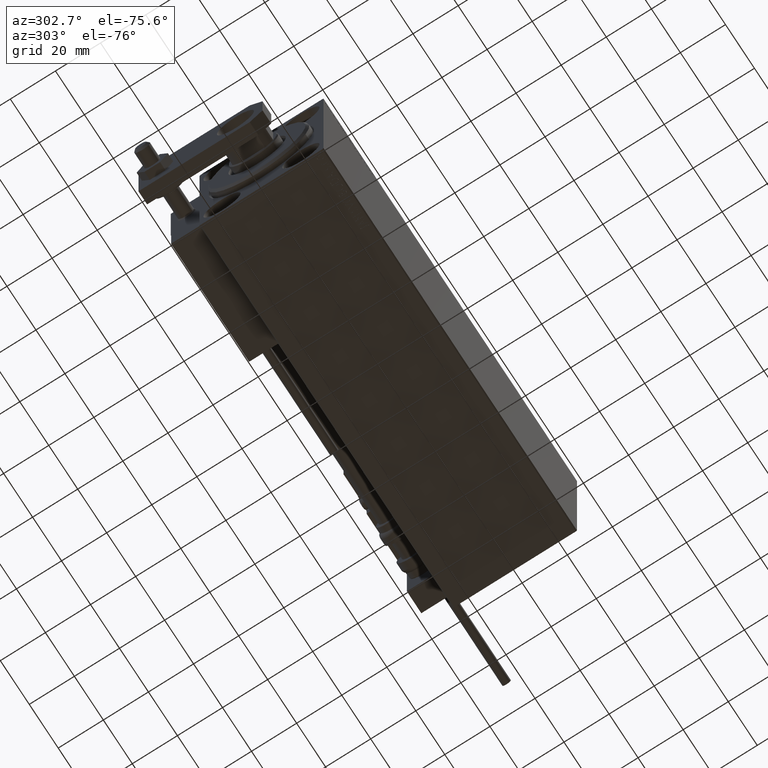
[diagram: clean part render]
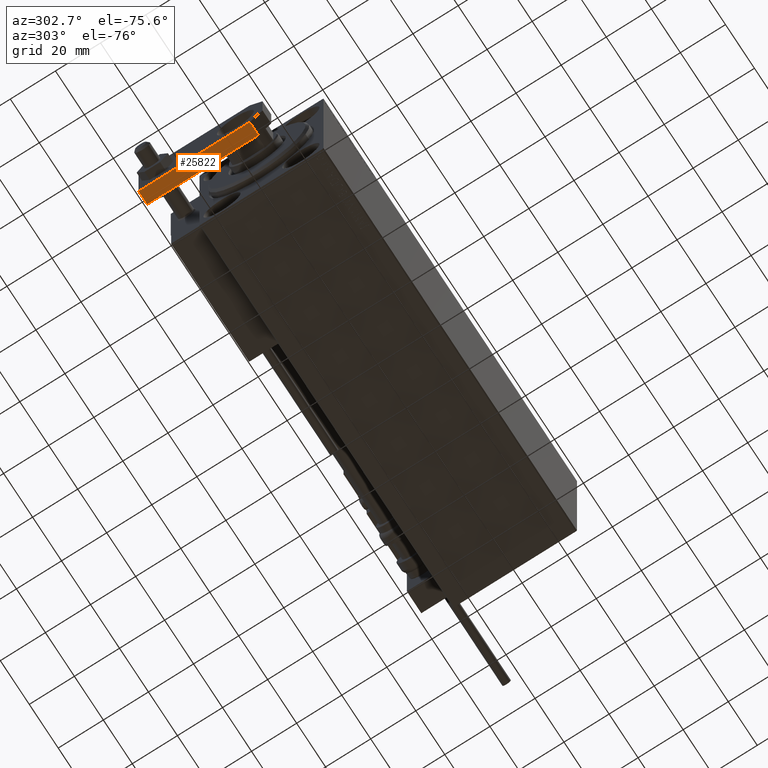
[diagram: same view with one face highlighted and labeled with its STEP entity id]
A machine part, auxiliary view. The second image highlights one B-rep face of the part: STEP entity #25822.
In plain terms, the highlighted planar face has unit normal (0, -0, 1).
Its self-contained STEP definition (entity closure, byte-faithful):
#1749 = VECTOR ( 'NONE', #31402, 1000.000000000000000 ) ;
#3448 = DIRECTION ( 'NONE',  ( -9.462128050782584375E-17, -1.000000000000000000, 0.000000000000000000 ) ) ;
#3546 = ORIENTED_EDGE ( 'NONE', *, *, #4240, .T. ) ;
#3769 = DIRECTION ( 'NONE',  ( 1.000000000000000000, -9.462128050782583143E-17, 0.000000000000000000 ) ) ;
#4240 = EDGE_CURVE ( 'NONE', #29389, #39177, #25940, .T. ) ;
#6147 = VECTOR ( 'NONE', #3448, 1000.000000000000000 ) ;
#7253 = LINE ( 'NONE', #7489, #40163 ) ;
#7489 = CARTESIAN_POINT ( 'NONE',  ( -12.49999999999999822, 55.00000000000000000, 6.000000000000000000 ) ) ;
#9813 = CARTESIAN_POINT ( 'NONE',  ( -12.50000000000000355, 5.660000000000005471, 6.000000000000000000 ) ) ;
#11435 = LINE ( 'NONE', #19763, #1749 ) ;
#12274 = CARTESIAN_POINT ( 'NONE',  ( -12.50000000000000355, 5.660000000000005471, 0.000000000000000000 ) ) ;
#12505 = EDGE_CURVE ( 'NONE', #39177, #14625, #16936, .T. ) ;
#13963 = CARTESIAN_POINT ( 'NONE',  ( -12.49999999999999822, 55.00000000000000000, 0.000000000000000000 ) ) ;
#14625 = VERTEX_POINT ( 'NONE', #9813 ) ;
#14647 = PLANE ( 'NONE',  #47194 ) ;
#16936 = LINE ( 'NONE', #20464, #35456 ) ;
#19763 = CARTESIAN_POINT ( 'NONE',  ( -12.49999999999999822, 55.00000000000000000, 6.000000000000000000 ) ) ;
#20464 = CARTESIAN_POINT ( 'NONE',  ( -12.50000000000000355, 5.660000000000005471, 6.000000000000000000 ) ) ;
#22482 = CARTESIAN_POINT ( 'NONE',  ( -12.49999999999999822, 55.00000000000000000, 6.000000000000000000 ) ) ;
#25822 = ADVANCED_FACE ( 'NONE', ( #33849 ), #14647, .F. ) ;
#25940 = LINE ( 'NONE', #38037, #6147 ) ;
#27134 = ORIENTED_EDGE ( 'NONE', *, *, #35667, .T. ) ;
#29389 = VERTEX_POINT ( 'NONE', #13963 ) ;
#31402 = DIRECTION ( 'NONE',  ( -9.462128050782584375E-17, -1.000000000000000000, 0.000000000000000000 ) ) ;
#33849 = FACE_OUTER_BOUND ( 'NONE', #43119, .T. ) ;
#35456 = VECTOR ( 'NONE', #36116, 1000.000000000000000 ) ;
#35591 = ORIENTED_EDGE ( 'NONE', *, *, #12505, .T. ) ;
#35667 = EDGE_CURVE ( 'NONE', #38385, #29389, #7253, .T. ) ;
#36116 = DIRECTION ( 'NONE',  ( 0.000000000000000000, 0.000000000000000000, 1.000000000000000000 ) ) ;
#38037 = CARTESIAN_POINT ( 'NONE',  ( -12.49999999999999822, 55.00000000000000000, 0.000000000000000000 ) ) ;
#38385 = VERTEX_POINT ( 'NONE', #39575 ) ;
#39177 = VERTEX_POINT ( 'NONE', #12274 ) ;
#39575 = CARTESIAN_POINT ( 'NONE',  ( -12.49999999999999822, 55.00000000000000000, 6.000000000000000000 ) ) ;
#40163 = VECTOR ( 'NONE', #42091, 1000.000000000000000 ) ;
#41411 = DIRECTION ( 'NONE',  ( 9.462128050782583143E-17, 1.000000000000000000, 0.000000000000000000 ) ) ;
#42091 = DIRECTION ( 'NONE',  ( -0.000000000000000000, -0.000000000000000000, -1.000000000000000000 ) ) ;
#43056 = EDGE_CURVE ( 'NONE', #38385, #14625, #11435, .T. ) ;
#43119 = EDGE_LOOP ( 'NONE', ( #3546, #35591, #45728, #27134 ) ) ;
#45728 = ORIENTED_EDGE ( 'NONE', *, *, #43056, .F. ) ;
#47194 = AXIS2_PLACEMENT_3D ( 'NONE', #22482, #3769, #41411 ) ;